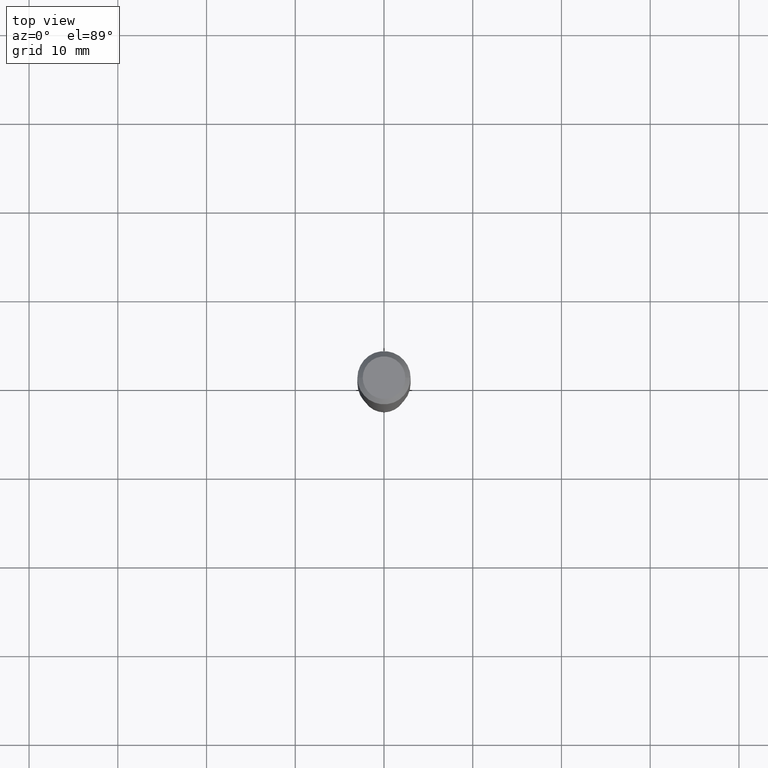
[diagram: clean part render]
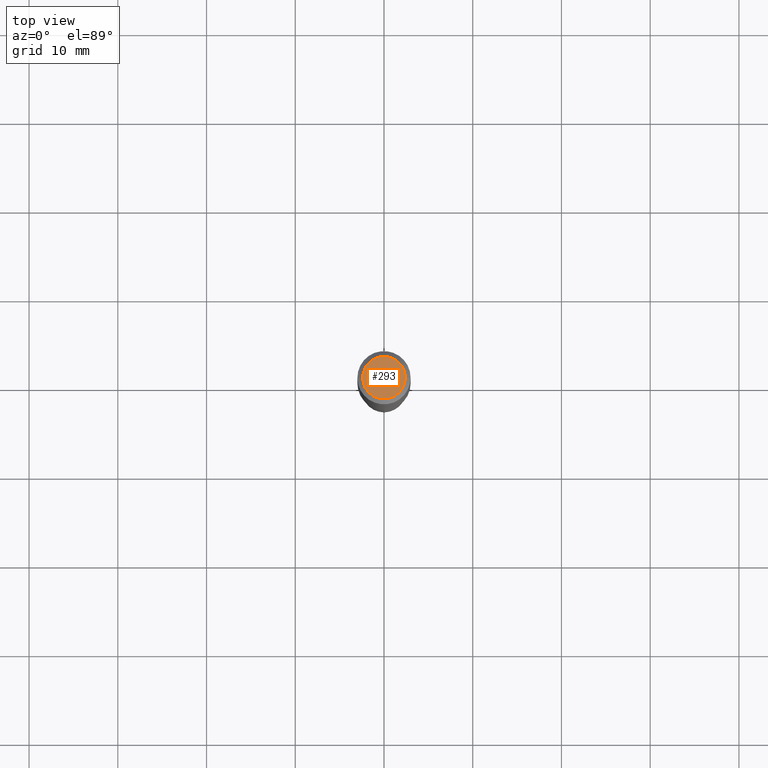
[diagram: same view with one face highlighted and labeled with its STEP entity id]
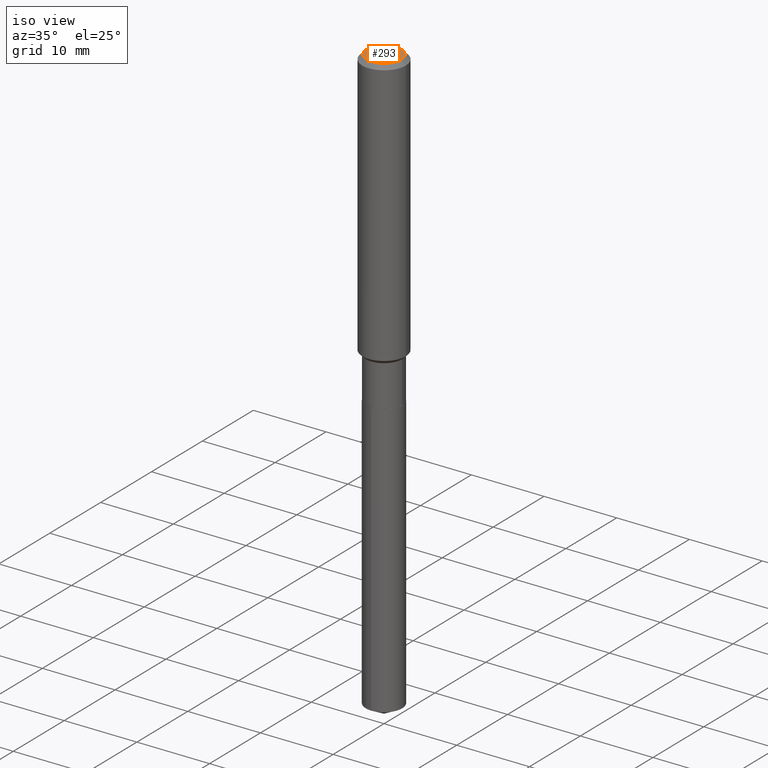
[diagram: same view with one face highlighted and labeled with its STEP entity id]
A machine part, top view. The second image highlights one B-rep face of the part: STEP entity #293.
A second angle (iso view) of the same face is appended — the face is thin or edge-on in the first view.
In plain terms, the highlighted planar face has unit normal (0, -0, -1).
Its self-contained STEP definition (entity closure, byte-faithful):
#1 = PLANE ( 'NONE',  #393 ) ;
#20 = DIRECTION ( 'NONE',  ( 1.000000000000000000, -6.982962677686267499E-15, 4.875432709231658792E-29 ) ) ;
#33 = FACE_OUTER_BOUND ( 'NONE', #461, .T. ) ;
#101 = AXIS2_PLACEMENT_3D ( 'NONE', #386, #199, #435 ) ;
#117 = VERTEX_POINT ( 'NONE', #210 ) ;
#124 = AXIS2_PLACEMENT_3D ( 'NONE', #126, #356, #20 ) ;
#126 = CARTESIAN_POINT ( 'NONE',  ( 4.716267017698007905E-46, -6.733579360998555036E-32, -1.928573779297252010E-17 ) ) ;
#142 = DIRECTION ( 'NONE',  ( -1.000000000000000000, 6.982962677686265922E-15, -4.876176775795935793E-29 ) ) ;
#199 = DIRECTION ( 'NONE',  ( -2.445468806185136597E-29, 3.491481338843145583E-15, 1.000000000000000000 ) ) ;
#210 = CARTESIAN_POINT ( 'NONE',  ( 0.09447999999999998066, -7.704367267948738690E-16, -1.928573779296752193E-17 ) ) ;
#225 = CARTESIAN_POINT ( 'NONE',  ( 2.358133508849003952E-46, -3.366789680499277518E-32, -9.642868896486260050E-18 ) ) ;
#293 = ADVANCED_FACE ( 'NONE', ( #33 ), #1, .F. ) ;
#345 = CIRCLE ( 'NONE', #124, 0.09447999999999998066 ) ;
#356 = DIRECTION ( 'NONE',  ( -2.445468806185136597E-29, 3.491481338843145583E-15, 1.000000000000000000 ) ) ;
#368 = CARTESIAN_POINT ( 'NONE',  ( -0.09447999999999998066, 7.009847083995354710E-16, -1.928573779297727792E-17 ) ) ;
#375 = ORIENTED_EDGE ( 'NONE', *, *, #431, .T. ) ;
#386 = CARTESIAN_POINT ( 'NONE',  ( 4.716267017698007905E-46, -6.733579360998555036E-32, -1.928573779297252010E-17 ) ) ;
#393 = AXIS2_PLACEMENT_3D ( 'NONE', #225, #452, #142 ) ;
#421 = CIRCLE ( 'NONE', #101, 0.09447999999999998066 ) ;
#431 = EDGE_CURVE ( 'NONE', #117, #487, #421, .T. ) ;
#435 = DIRECTION ( 'NONE',  ( 1.000000000000000000, -6.982962677686267499E-15, 4.875432709231658792E-29 ) ) ;
#450 = EDGE_CURVE ( 'NONE', #487, #117, #345, .T. ) ;
#451 = ORIENTED_EDGE ( 'NONE', *, *, #450, .T. ) ;
#452 = DIRECTION ( 'NONE',  ( 2.438088387897960049E-29, -3.491481338843145188E-15, -1.000000000000000000 ) ) ;
#461 = EDGE_LOOP ( 'NONE', ( #451, #375 ) ) ;
#487 = VERTEX_POINT ( 'NONE', #368 ) ;